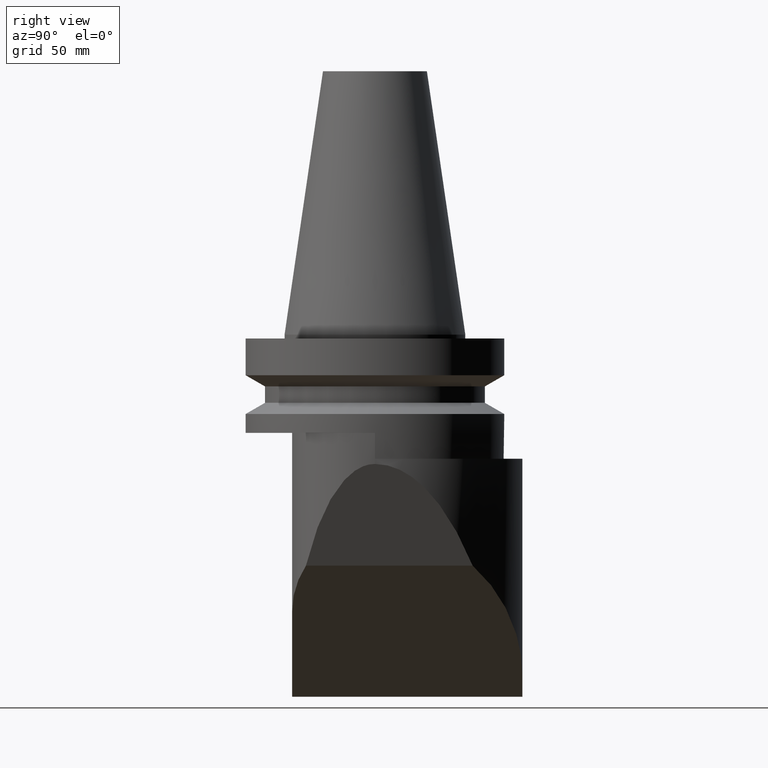
[diagram: clean part render]
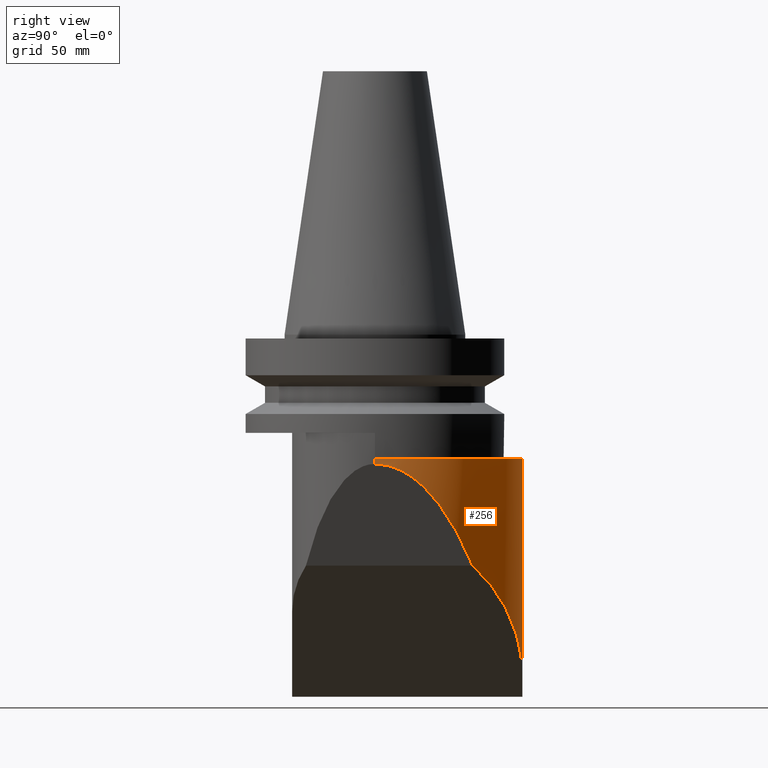
[diagram: same view with one face highlighted and labeled with its STEP entity id]
A machine part, right view. The second image highlights one B-rep face of the part: STEP entity #256.
In plain terms, the highlighted cylindrical surface (partial cylindrical patch) has radius 57 mm, axis along (-0, -0, -1).
Its self-contained STEP definition (entity closure, byte-faithful):
#111=EDGE_CURVE('Unnamed[1]',#312,#313,#314,.T.);
#131=EDGE_CURVE('Unnamed[1]',#338,#345,#346,.T.);
#179=EDGE_CURVE('Unnamed[1]',#345,#416,#417,.T.);
#205=EDGE_CURVE('Unnamed[1]',#338,#312,#450,.T.);
#207=EDGE_CURVE('Unnamed[1]',#313,#416,#452,.T.);
#256=ADVANCED_FACE('Unnamed[1]',(#513),#514,.T.);
#312=VERTEX_POINT('',#570);
#313=VERTEX_POINT('',#571);
#314=ELLIPSE('',#572,80.6101730552664,57.0);
#338=VERTEX_POINT('',#605);
#345=VERTEX_POINT('',#614);
#346=LINE('',#615,#616);
#416=VERTEX_POINT('',#715);
#417=CIRCLE('',#716,57.0);
#450=ELLIPSE('',#764,166.656850809296,57.0);
#452=LINE('',#767,#768);
#513=FACE_OUTER_BOUND('',#857,.T.);
#514=CYLINDRICAL_SURFACE('',#858,57.0);
#570=CARTESIAN_POINT('',(35.6936634936258,37.7657397318381,-89.3063365063733));
#571=CARTESIAN_POINT('',(-6.99998249077038,56.9999999999947,-131.99998249077));
#572=AXIS2_PLACEMENT_3D('',#915,#916,#917);
#605=CARTESIAN_POINT('',(49.9999999999964,-2.98102113083824E-012,-50.0000000000009));
#614=CARTESIAN_POINT('',(50.0000000000011,-2.62967358456056E-012,-48.0000000000074));
#615=CARTESIAN_POINT('',(50.0000000000011,-2.65637088478197E-012,-265.999999999997));
#616=VECTOR('',#947,1.0);
#715=CARTESIAN_POINT('',(-6.99998249077038,56.9999999999947,-48.0000000000149));
#716=AXIS2_PLACEMENT_3D('',#1010,#1011,#1012);
#764=AXIS2_PLACEMENT_3D('',#1054,#1055,#1056);
#767=CARTESIAN_POINT('',(-6.99998249077039,56.9999999999947,-265.999999999997));
#768=VECTOR('',#1057,1.0);
#857=EDGE_LOOP('',(#1149,#1150,#1151,#1152,#1153));
#858=AXIS2_PLACEMENT_3D('',#1154,#1155,#1156);
#915=CARTESIAN_POINT('',(-6.99999999999893,-2.6399606176734E-012,-131.999999999998));
#916=DIRECTION('',(-0.707106781186547,1.73191211247099E-016,0.707106781186548));
#917=DIRECTION('',(0.707106781186548,-8.65956056235494E-017,0.707106781186547));
#947=DIRECTION('',(6.12323399573677E-017,1.22464679914735E-016,1.0));
#1010=CARTESIAN_POINT('',(-6.99999999999892,-2.62967358456056E-012,-48.0000000000001));
#1011=DIRECTION('',(6.12323399573839E-017,1.32283413531267E-013,1.0));
#1012=DIRECTION('',(1.0,-2.44929359829471E-016,-6.12323399573515E-017));
#1054=CARTESIAN_POINT('',(-6.99999999999893,-2.64909724365694E-012,-206.606212908902));
#1055=DIRECTION('',(-0.939692620785909,1.56964543399555E-016,0.342020143325668));
#1056=DIRECTION('',(0.342020143325668,3.13083812692453E-017,0.939692620785909));
#1057=DIRECTION('',(6.12323399573677E-017,1.22464679914735E-016,1.0));
#1149=ORIENTED_EDGE('',*,*,#111,.T.);
#1150=ORIENTED_EDGE('',*,*,#207,.T.);
#1151=ORIENTED_EDGE('',*,*,#179,.F.);
#1152=ORIENTED_EDGE('',*,*,#131,.F.);
#1153=ORIENTED_EDGE('',*,*,#205,.T.);
#1154=CARTESIAN_POINT('',(-6.99999999999894,-2.65637088478197E-012,-265.999999999997));
#1155=DIRECTION('',(-6.12323399573677E-017,-1.22464679914735E-016,-1.0));
#1156=DIRECTION('',(1.0,-2.44929359829471E-016,-6.12323399573677E-017));